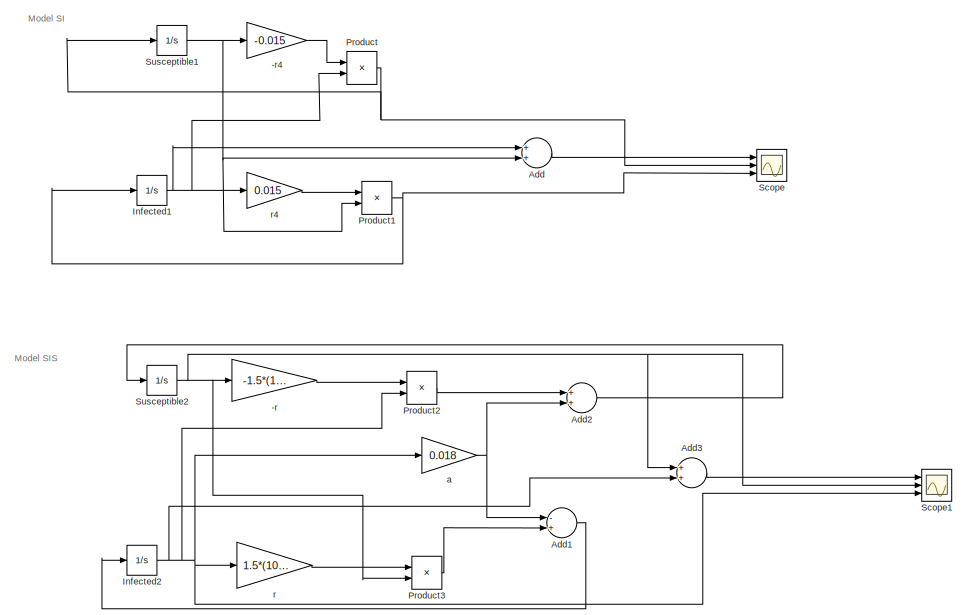
[diagram: root canvas - part 1/2, full width, top band]
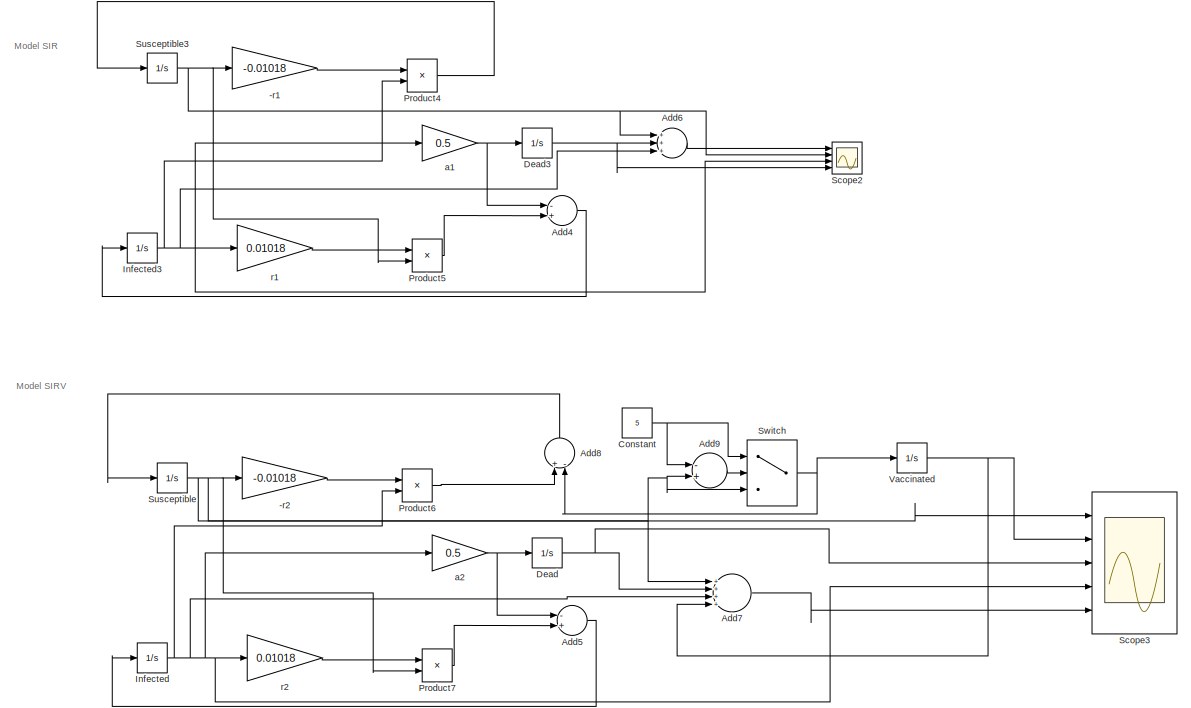
[diagram: root canvas - part 2/2, full width, bottom band]
MODEL hw6_
KIND model
BLOCK [Gain] -r
  Gain = -1.5*(10^-6)
  OutDataTypeStr = Inherit: Inherit via internal rule
  ParamDataTypeStr = Inherit: Inherit via internal rule
  SID = 14
  SaturateOnIntegerOverflow = off
BLOCK [Gain] -r1
  Gain = -0.01018
  OutDataTypeStr = Inherit: Inherit via internal rule
  ParamDataTypeStr = Inherit: Inherit via internal rule
  SID = 27
  SaturateOnIntegerOverflow = off
BLOCK [Gain] -r2
  Gain = -0.01018
  OutDataTypeStr = Inherit: Inherit via internal rule
  ParamDataTypeStr = Inherit: Inherit via internal rule
  SID = 40
  SaturateOnIntegerOverflow = off
BLOCK [Gain] -r4
  Gain = -0.015
  OutDataTypeStr = Inherit: Inherit via internal rule
  ParamDataTypeStr = Inherit: Inherit via internal rule
  SID = 9
  SaturateOnIntegerOverflow = off
BLOCK [Sum] Add
  InputSameDT = off
  OutDataTypeStr = Inherit: Inherit via internal rule
  Ports = [2, 1]
  SID = 8
  SaturateOnIntegerOverflow = off
BLOCK [Sum] Add1
  InputSameDT = off
  Inputs = -+
  OutDataTypeStr = Inherit: Inherit via internal rule
  Ports = [2, 1]
  SID = 24
  SaturateOnIntegerOverflow = off
BLOCK [Sum] Add2
  InputSameDT = off
  OutDataTypeStr = Inherit: Inherit via internal rule
  Ports = [2, 1]
  SID = 22
  SaturateOnIntegerOverflow = off
BLOCK [Sum] Add3
  InputSameDT = off
  OutDataTypeStr = Inherit: Inherit via internal rule
  Ports = [2, 1]
  SID = 26
  SaturateOnIntegerOverflow = off
BLOCK [Sum] Add4
  InputSameDT = off
  Inputs = -+
  OutDataTypeStr = Inherit: Inherit via internal rule
  Ports = [2, 1]
  SID = 28
  SaturateOnIntegerOverflow = off
BLOCK [Sum] Add5
  InputSameDT = off
  Inputs = -+
  OutDataTypeStr = Inherit: Inherit via internal rule
  Ports = [2, 1]
  SID = 41
  SaturateOnIntegerOverflow = off
BLOCK [Sum] Add6
  InputSameDT = off
  Inputs = +++
  OutDataTypeStr = Inherit: Inherit via internal rule
  Ports = [3, 1]
  SID = 30
  SaturateOnIntegerOverflow = off
BLOCK [Sum] Add7
  InputSameDT = off
  Inputs = ++++
  OutDataTypeStr = Inherit: Inherit via internal rule
  Ports = [4, 1]
  SID = 42
  SaturateOnIntegerOverflow = off
BLOCK [Sum] Add8
  InputSameDT = off
  Inputs = +-
  OutDataTypeStr = Inherit: Inherit via internal rule
  Ports = [2, 1]
  SID = 55
  SaturateOnIntegerOverflow = off
BLOCK [Sum] Add9
  InputSameDT = off
  Inputs = -+
  OutDataTypeStr = Inherit: Inherit via internal rule
  Ports = [2, 1]
  SID = 64
  SaturateOnIntegerOverflow = off
BLOCK [Constant] Constant
  SID = 53
  Value = 5
BLOCK [Integrator] Dead
  Ports = [1, 1]
  SID = 46
BLOCK [Integrator] Dead3
  Ports = [1, 1]
  SID = 39
BLOCK [Integrator] Infected
  InitialCondition = 1
  Ports = [1, 1]
  SID = 43
BLOCK [Integrator] Infected1
  InitialCondition = 1
  Ports = [1, 1]
  SID = 5
BLOCK [Integrator] Infected2
  InitialCondition = 10
  Ports = [1, 1]
  SID = 17
BLOCK [Integrator] Infected3
  InitialCondition = 1
  Ports = [1, 1]
  SID = 33
BLOCK [Product] Product
  InputSameDT = off
  OutDataTypeStr = Inherit: Inherit via internal rule
  Ports = [2, 1]
  RndMeth = Floor
  SID = 3
  SaturateOnIntegerOverflow = off
BLOCK [Product] Product1
  InputSameDT = off
  OutDataTypeStr = Inherit: Inherit via internal rule
  Ports = [2, 1]
  RndMeth = Floor
  SID = 7
  SaturateOnIntegerOverflow = off
BLOCK [Product] Product2
  InputSameDT = off
  OutDataTypeStr = Inherit: Inherit via internal rule
  Ports = [2, 1]
  RndMeth = Floor
  SID = 18
  SaturateOnIntegerOverflow = off
BLOCK [Product] Product3
  InputSameDT = off
  OutDataTypeStr = Inherit: Inherit via internal rule
  Ports = [2, 1]
  RndMeth = Floor
  SID = 19
  SaturateOnIntegerOverflow = off
BLOCK [Product] Product4
  InputSameDT = off
  OutDataTypeStr = Inherit: Inherit via internal rule
  Ports = [2, 1]
  RndMeth = Floor
  SID = 34
  SaturateOnIntegerOverflow = off
BLOCK [Product] Product5
  InputSameDT = off
  OutDataTypeStr = Inherit: Inherit via internal rule
  Ports = [2, 1]
  RndMeth = Floor
  SID = 35
  SaturateOnIntegerOverflow = off
BLOCK [Product] Product6
  InputSameDT = off
  OutDataTypeStr = Inherit: Inherit via internal rule
  Ports = [2, 1]
  RndMeth = Floor
  SID = 44
  SaturateOnIntegerOverflow = off
BLOCK [Product] Product7
  InputSameDT = off
  OutDataTypeStr = Inherit: Inherit via internal rule
  Ports = [2, 1]
  RndMeth = Floor
  SID = 45
  SaturateOnIntegerOverflow = off
BLOCK [Scope] Scope
  DataFormat = StructureWithTime
  Floating = off
  NumInputPorts = 3
  Ports = [3]
  SID = 2
  SampleTime = 0
  ShowLegends = off
  YMax = 5~5~5
  YMin = -5~-5~-5
BLOCK [Scope] Scope1
  DataFormat = StructureWithTime
  Floating = off
  NumInputPorts = 3
  Ports = [3]
  SID = 20
  SampleTime = 0
  SaveName = ScopeData1
  ShowLegends = off
  YMax = 5~5~5
  YMin = -5~-5~-5
  ZoomMode = yonly
BLOCK [Scope] Scope2
  DataFormat = StructureWithTime
  Floating = off
  NumInputPorts = 4
  Ports = [4]
  SID = 36
  SampleTime = 0
  SaveName = ScopeData2
  ShowLegends = off
  YMax = 5~5~5~5
  YMin = -5~-5~-5~-5
  ZoomMode = yonly
BLOCK [Scope] Scope3
  DataFormat = StructureWithTime
  Floating = off
  NumInputPorts = 5
  Ports = [5]
  SID = 48
  SampleTime = 0
  SaveName = ScopeData3
  ShowLegends = off
  YMax = 5~5~5~5~5
  YMin = -5~-5~-5~-5~-5
  ZoomMode = yonly
BLOCK [Integrator] Susceptible
  InitialCondition = 99
  Ports = [1, 1]
  SID = 47
BLOCK [Integrator] Susceptible1
  InitialCondition = 99
  Ports = [1, 1]
  SID = 1
BLOCK [Integrator] Susceptible2
  InitialCondition = 200000-10
  Ports = [1, 1]
  SID = 16
BLOCK [Integrator] Susceptible3
  InitialCondition = 99
  Ports = [1, 1]
  SID = 32
BLOCK [Switch] Switch
  InputSameDT = off
  SID = 52
  SaturateOnIntegerOverflow = off
BLOCK [Integrator] Vaccinated
  Ports = [1, 1]
  SID = 57
BLOCK [Gain] a
  Gain = 0.018
  OutDataTypeStr = Inherit: Inherit via internal rule
  ParamDataTypeStr = Inherit: Inherit via internal rule
  SID = 23
  SaturateOnIntegerOverflow = off
BLOCK [Gain] a1
  Gain = 0.5
  OutDataTypeStr = Inherit: Inherit via internal rule
  ParamDataTypeStr = Inherit: Inherit via internal rule
  SID = 37
  SaturateOnIntegerOverflow = off
BLOCK [Gain] a2
  Gain = 0.5
  OutDataTypeStr = Inherit: Inherit via internal rule
  ParamDataTypeStr = Inherit: Inherit via internal rule
  SID = 49
  SaturateOnIntegerOverflow = off
BLOCK [Gain] r
  Gain = 1.5*(10^-6)
  OutDataTypeStr = Inherit: Inherit via internal rule
  ParamDataTypeStr = Inherit: Inherit via internal rule
  SID = 15
  SaturateOnIntegerOverflow = off
BLOCK [Gain] r1
  Gain = 0.01018
  OutDataTypeStr = Inherit: Inherit via internal rule
  ParamDataTypeStr = Inherit: Inherit via internal rule
  SID = 31
  SaturateOnIntegerOverflow = off
BLOCK [Gain] r2
  Gain = 0.01018
  OutDataTypeStr = Inherit: Inherit via internal rule
  ParamDataTypeStr = Inherit: Inherit via internal rule
  SID = 50
  SaturateOnIntegerOverflow = off
BLOCK [Gain] r4
  Gain = 0.015
  OutDataTypeStr = Inherit: Inherit via internal rule
  ParamDataTypeStr = Inherit: Inherit via internal rule
  SID = 10
  SaturateOnIntegerOverflow = off
ANNOTATION (root): Model SIR
ANNOTATION (root): Model SIRV
ANNOTATION (root): Model SIS
ANNOTATION (root): Model SI
LINE -r1:1 -> Product4:1
LINE -r2:1 -> Product6:1
LINE -r4:1 -> Product:1
LINE -r:1 -> Product2:1
LINE Add1:1 -> Infected2:1
LINE Add2:1 -> Susceptible2:1
LINE Add3:1 -> Scope1:1
LINE Add4:1 -> Infected3:1
LINE Add5:1 -> Infected:1
LINE Add6:1 -> Scope2:1
LINE Add7:1 -> Scope3:5
LINE Add8:1 -> Susceptible:1
LINE Add9:1 -> Switch:2
LINE Add:1 -> Scope:1
NET Constant:1 -> Add9:1, Switch:1
NET Dead3:1 -> Add6:2, Scope2:4
NET Dead:1 -> Add7:2, Scope3:3
NET Infected1:1 -> Add:1, Product:2, r4:1
NET Infected2:1 -> Add3:2, Product2:2, Scope1:3, a:1, r:1
NET Infected3:1 -> Add6:3, Product4:2, Scope2:3, a1:1, r1:1
NET Infected:1 -> Add7:3, Product6:2, Scope3:4, a2:1, r2:1
NET Product1:1 -> Infected1:1, Scope:3
LINE Product2:1 -> Add2:1
LINE Product3:1 -> Add1:2
LINE Product4:1 -> Susceptible3:1
LINE Product5:1 -> Add4:2
LINE Product6:1 -> Add8:1
LINE Product7:1 -> Add5:2
NET Product:1 -> Scope:2, Susceptible1:1
NET Susceptible1:1 -> -r4:1, Add:2, Product1:2
NET Susceptible2:1 -> -r:1, Add3:1, Product3:2, Scope1:2
NET Susceptible3:1 -> -r1:1, Add6:1, Product5:2, Scope2:2
NET Susceptible:1 -> -r2:1, Add7:1, Add9:2, Product7:2, Scope3:1, Switch:3
NET Switch:1 -> Add8:2, Vaccinated:1
NET Vaccinated:1 -> Add7:4, Scope3:2
NET a1:1 -> Add4:1, Dead3:1
NET a2:1 -> Add5:1, Dead:1
NET a:1 -> Add1:1, Add2:2
LINE r1:1 -> Product5:1
LINE r2:1 -> Product7:1
LINE r4:1 -> Product1:1
LINE r:1 -> Product3:1
note: NET lines group one-source signal fan-out (src -> all destinations, sorted); 1:1 wires keep LINE
